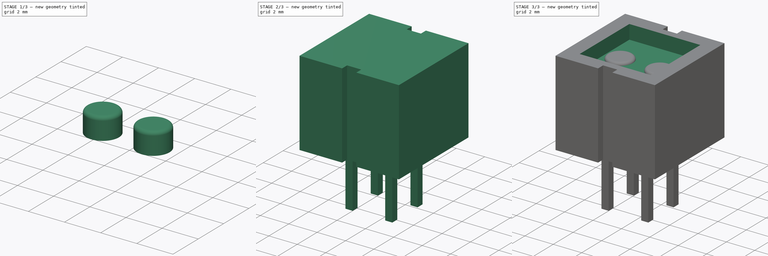
[diagram: build sequence overview — one tinted view per stage of 3, left to right]
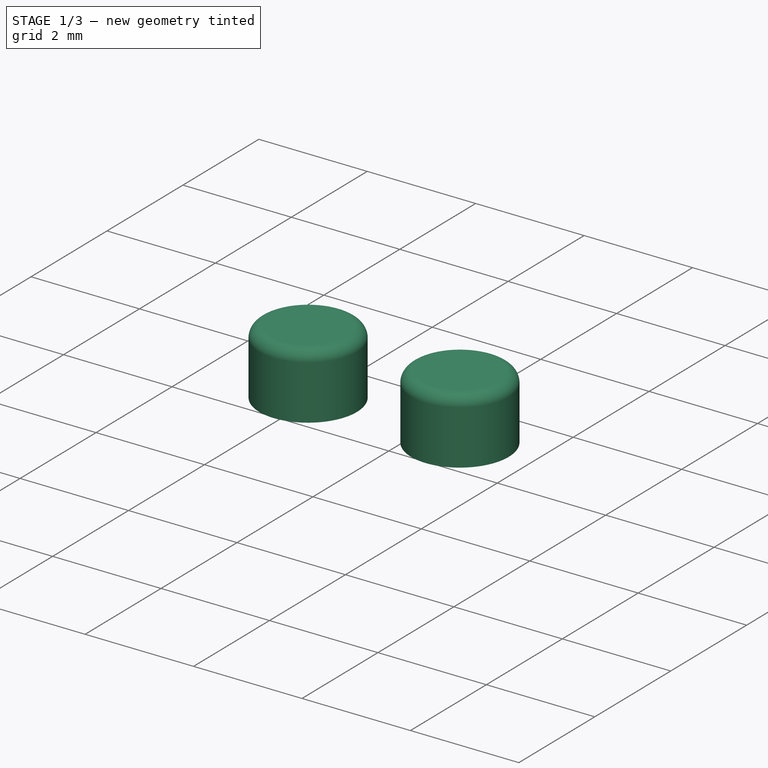
[diagram: stage 1 of 3 — iso view after this stage's code; geometry added in this stage tinted green]
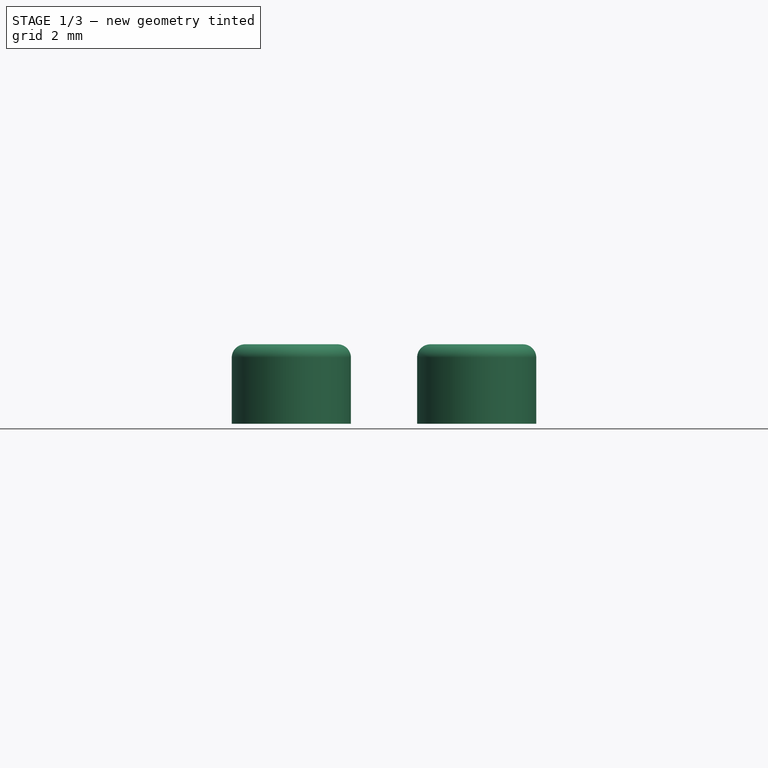
[diagram: stage 1 of 3 — front view after this stage's code; geometry added in this stage tinted green]
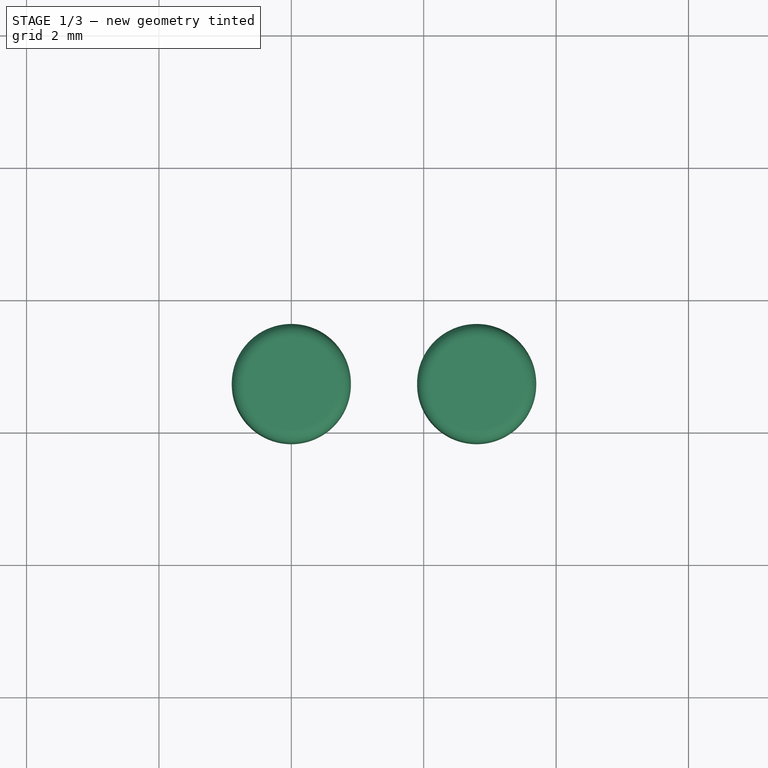
[diagram: stage 1 of 3 — top view after this stage's code; geometry added in this stage tinted green]
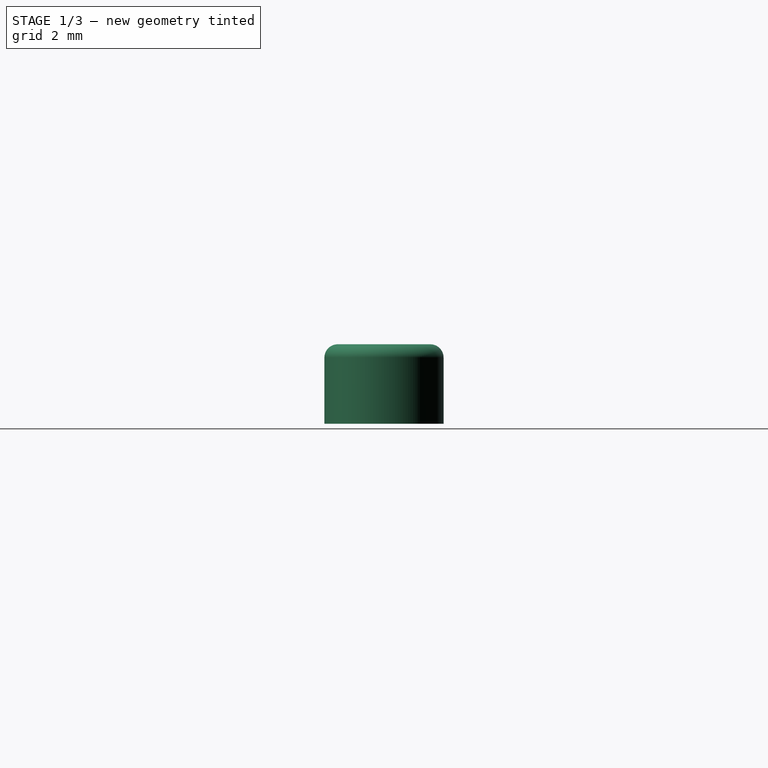
[diagram: stage 1 of 3 — right view after this stage's code; geometry added in this stage tinted green]
FCSTD DOCUMENT  (FreeCAD 0.16R6712 (Git))
Label: Vishay_CNY70
License: All rights reserved
LicenseURL: http://en.wikipedia.org/wiki/All_rights_reserved
objects: Sketcher::SketchObject×4, PartDesign::Pad×3, Part::Feature×3, PartDesign::Pocket×1, PartDesign::Fillet×1, Part::MultiFuse×1, App::DocumentObjectGroup×1
note: 17 computed .brp shape members not serialized (recipe doc carries the construction recipe); baked Part::Feature solids carry a one-line shape summary decoded from their .brp

FEATURE [PartDesign::Pad] Pad003
  Length = 1.2
  Length2 = 100
  Placement = pos=(1.4,-1.27,4) rot=(0,0,1;0rad)
  Sketch = -> Sketch002
  Type = 0
FEATURE [PartDesign::Fillet] Fillet
  Base = -> Pad003 [Edge6,Edge3]
  Placement = pos=(1.4,-1.27,4) rot=(0,0,1;0rad)
  Radius = 0.2
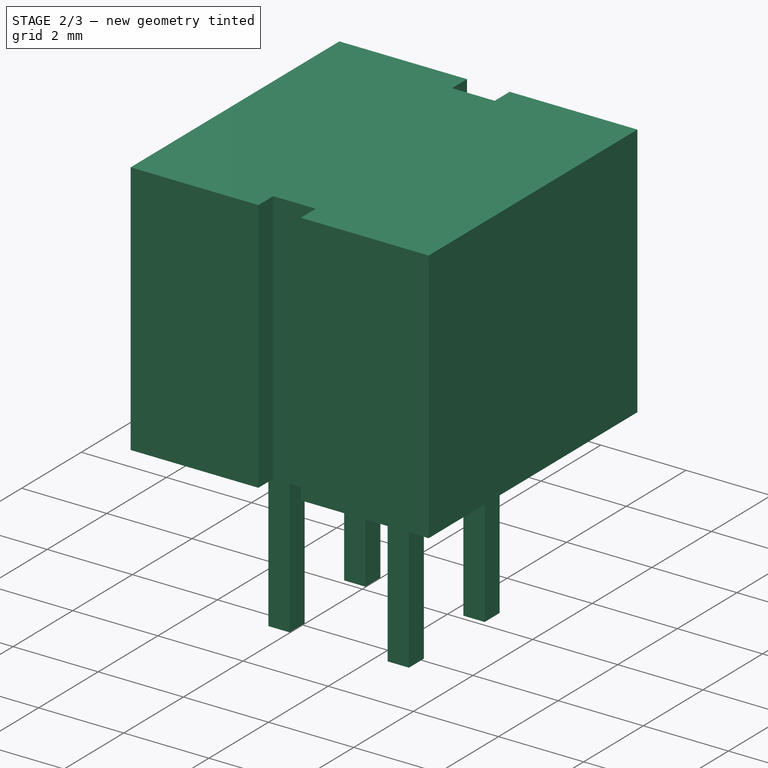
[diagram: stage 2 of 3 — iso view after this stage's code; geometry added in this stage tinted green]
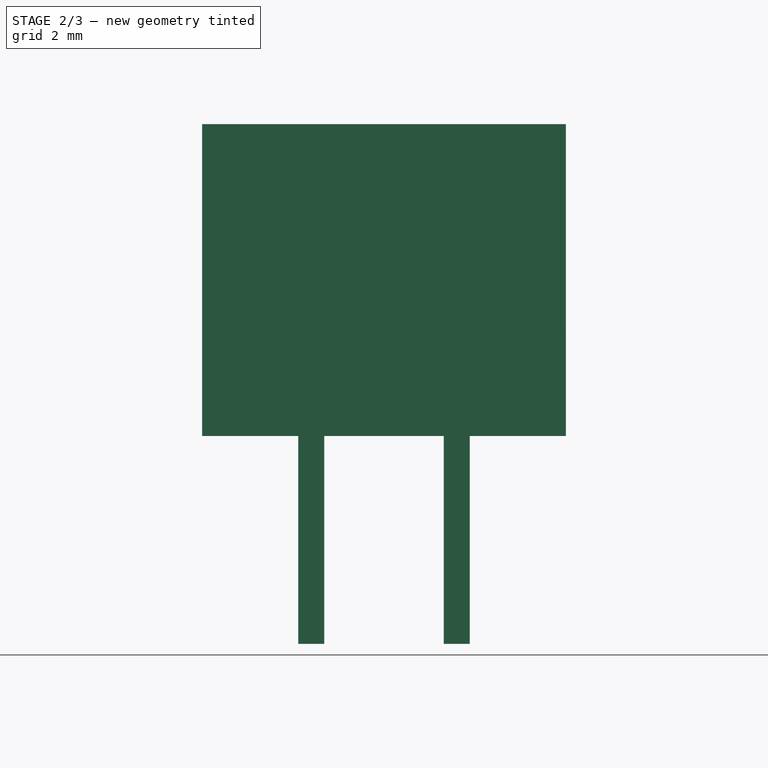
[diagram: stage 2 of 3 — front view after this stage's code; geometry added in this stage tinted green]
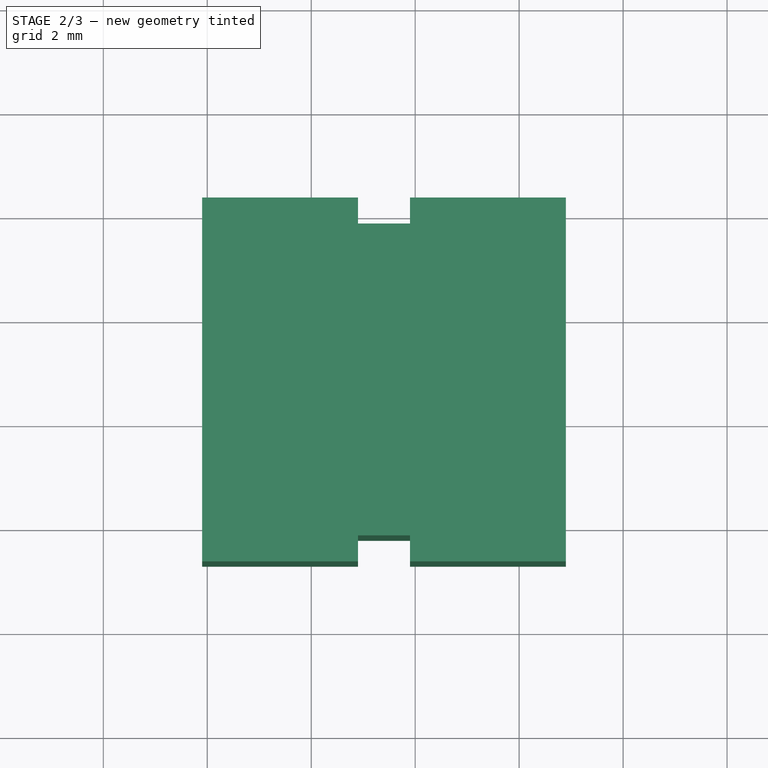
[diagram: stage 2 of 3 — top view after this stage's code; geometry added in this stage tinted green]
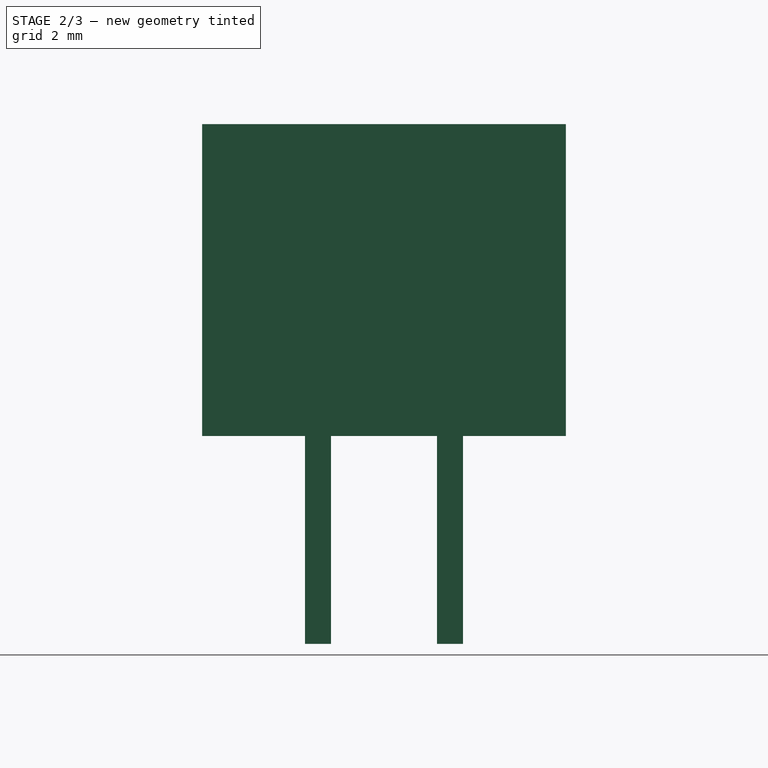
[diagram: stage 2 of 3 — right view after this stage's code; geometry added in this stage tinted green]
FEATURE [Sketcher::SketchObject] Sketch
  Placement = pos=(1.4,-1.27,0) rot=(0,0,1;0rad)
  sketch-geometry (14):
    g0: LineSegment StartX=-3.5 StartY=3.5 StartZ=0 EndX=-3.5 EndY=-3.5 EndZ=0
    g1: LineSegment StartX=-3.5 StartY=-3.5 StartZ=0 EndX=-0.5 EndY=-3.5 EndZ=0
    g2: LineSegment StartX=-0.5 StartY=-3.5 StartZ=0 EndX=-0.5 EndY=-3 EndZ=0
    g3: LineSegment StartX=-0.5 StartY=-3 StartZ=0 EndX=0.5 EndY=-3 EndZ=0
    g4: LineSegment StartX=0.5 StartY=-3 StartZ=0 EndX=0.5 EndY=-3.5 EndZ=0
    g5: LineSegment StartX=0.5 StartY=-3.5 StartZ=0 EndX=3.5 EndY=-3.5 EndZ=0
    g6: LineSegment StartX=3.5 StartY=-3.5 StartZ=0 EndX=3.5 EndY=3.5 EndZ=0
    g7: LineSegment StartX=3.5 StartY=3.5 StartZ=0 EndX=0.5 EndY=3.5 EndZ=0
    g8: LineSegment StartX=0.5 StartY=3.5 StartZ=0 EndX=0.5 EndY=3 EndZ=0
    g9: LineSegment StartX=0.5 StartY=3 StartZ=0 EndX=-0.5 EndY=3 EndZ=0
    g10: LineSegment StartX=-0.5 StartY=3 StartZ=0 EndX=-0.5 EndY=3.5 EndZ=0
    g11: LineSegment StartX=-0.5 StartY=3.5 StartZ=0 EndX=-3.5 EndY=3.5 EndZ=0
    g12: GeomPoint [constr] X=0 Y=3 Z=0
    g13: GeomPoint [constr] X=-3.5 Y=0 Z=0
  constraints (41):
    c: Vertical(g0)
    c: Coincident(g1,g0)
    c: Horizontal(g1)
    c: Coincident(g2,g1)
    c: Horizontal(g3)
    c: Vertical(g4)
    c: Horizontal(g5)
    c: Vertical(g6)
    c: Horizontal(g7)
    c: Vertical(g8)
    c: Horizontal(g9)
    c: Vertical(g10)
    c: Coincident(g11,g0)
    c: Horizontal(g11)
    c: Vertical(g2)
    c: Equal(g3,g9)
    c: Equal(g10,g8)
    c: Equal(g8,g4)
    c: Equal(g4,g2)
    c: Equal(g5,g7)
    c: Equal(g7,g11)
    c: Equal(g11,g1)
    c: Equal(g0,g6)
    c: Coincident(g6,g7)
    c: Coincident(g5,g6)
    c: Coincident(g10,g11)
    c: Coincident(g7,g8)
    c: Coincident(g4,g5)
    c: Coincident(g3,g4)
    c: Coincident(g2,g3)
    c: Coincident(g9,g10)
    c: PointOnObject(g12,g9)
    c: Symmetric(g9,g9,g12)
    c: PointOnObject(g12,g-2)
    c: PointOnObject(g13,g0)
    c: Symmetric(g0,g0,g13)
    c: PointOnObject(g13,g-1)
    c: DistanceY(g6,g6) = 7
    c: DistanceX(g0,g6) = 7
    c: DistanceX(g9,g9) = 1
    c: DistanceY(g4,g4) = 0.5
FEATURE [PartDesign::Pad] Pad
  Length = 6
  Length2 = 100
  Placement = pos=(1.4,-1.27,0) rot=(0,0,1;0rad)
  Sketch = -> Sketch
  Type = 0
FEATURE [Sketcher::SketchObject] Sketch002
  Placement = pos=(1.4,-1.27,4) rot=(0,0,1;0rad)
  sketch-geometry (3):
    g0: Circle CenterX=-1.4 CenterY=0 CenterZ=0 NormalX=0 NormalY=0 NormalZ=1 Radius=0.9
    g1: Circle CenterX=1.4 CenterY=0 CenterZ=0 NormalX=0 NormalY=0 NormalZ=1 Radius=0.9
    g2: LineSegment [constr] StartX=-1.4 StartY=0 StartZ=0 EndX=1.4 EndY=0 EndZ=0
  constraints (8):
    c: PointOnObject(g1,g-1)
    c: Coincident(g2,g0)
    c: Coincident(g2,g1)
    c: Horizontal(g2)
    c: Symmetric(g2,g2,g-1)
    c: DistanceX(g2,g2) = 2.8
    c: Equal(g0,g1)
    c: Radius(g1) = 0.9
FEATURE [Sketcher::SketchObject] Sketch004
  Placement = pos=(1.4,-1.27,0) rot=(0,0,1;0rad)
  sketch-geometry (18):
    g0: LineSegment StartX=-1.65 StartY=1.52 StartZ=0 EndX=-1.15 EndY=1.52 EndZ=0
    g1: LineSegment StartX=-1.15 StartY=1.52 StartZ=0 EndX=-1.15 EndY=1.02 EndZ=0
    g2: LineSegment StartX=-1.15 StartY=1.02 StartZ=0 EndX=-1.65 EndY=1.02 EndZ=0
    g3: LineSegment StartX=-1.65 StartY=1.02 StartZ=0 EndX=-1.65 EndY=1.52 EndZ=0
    g4: LineSegment StartX=-1.65 StartY=-1.02 StartZ=0 EndX=-1.15 EndY=-1.02 EndZ=0
    g5: LineSegment StartX=-1.15 StartY=-1.02 StartZ=0 EndX=-1.15 EndY=-1.52 EndZ=0
    g6: LineSegment StartX=-1.15 StartY=-1.52 StartZ=0 EndX=-1.65 EndY=-1.52 EndZ=0
    g7: LineSegment StartX=-1.65 StartY=-1.52 StartZ=0 EndX=-1.65 EndY=-1.02 EndZ=0
    g8: LineSegment StartX=1.15 StartY=-1.02 StartZ=0 EndX=1.65 EndY=-1.02 EndZ=0
    g9: LineSegment StartX=1.65 StartY=-1.02 StartZ=0 EndX=1.65 EndY=-1.52 EndZ=0
    g10: LineSegment StartX=1.65 StartY=-1.52 StartZ=0 EndX=1.15 EndY=-1.52 EndZ=0
    g11: LineSegment StartX=1.15 StartY=-1.52 StartZ=0 EndX=1.15 EndY=-1.02 EndZ=0
    g12: LineSegment StartX=1.15 StartY=1.52 StartZ=0 EndX=1.65 EndY=1.52 EndZ=0
    g13: LineSegment StartX=1.65 StartY=1.52 StartZ=0 EndX=1.65 EndY=1.02 EndZ=0
    g14: LineSegment StartX=1.65 StartY=1.02 StartZ=0 EndX=1.15 EndY=1.02 EndZ=0
    g15: LineSegment StartX=1.15 StartY=1.02 StartZ=0 EndX=1.15 EndY=1.52 EndZ=0
    g16: LineSegment [constr] StartX=-1.65 StartY=1.52 StartZ=0 EndX=1.65 EndY=-1.52 EndZ=0
    g17: LineSegment [constr] StartX=1.65 StartY=1.52 StartZ=0 EndX=-1.65 EndY=-1.52 EndZ=0
  constraints (52):
    c: Coincident(g0,g1)
    c: Coincident(g1,g2)
    c: Coincident(g2,g3)
    c: Coincident(g3,g0)
    c: Horizontal(g0)
    c: Horizontal(g2)
    c: Vertical(g1)
    c: Vertical(g3)
    c: Coincident(g4,g5)
    c: Coincident(g5,g6)
    c: Coincident(g6,g7)
    c: Coincident(g7,g4)
    c: Horizontal(g4)
    c: Horizontal(g6)
    c: Vertical(g5)
    c: Vertical(g7)
    c: Coincident(g8,g9)
    c: Coincident(g9,g10)
    c: Coincident(g10,g11)
    c: Coincident(g11,g8)
    c: Horizontal(g8)
    c: Horizontal(g10)
    c: Vertical(g9)
    c: Vertical(g11)
    c: Coincident(g12,g13)
    c: Coincident(g13,g14)
    c: Coincident(g14,g15)
    c: Coincident(g15,g12)
    c: Horizontal(g12)
    c: Horizontal(g14)
    c: Vertical(g13)
    c: Vertical(g15)
    c: Equal(g13,g12)
    c: Equal(g12,g0)
    c: Equal(g0,g3)
    c: Equal(g3,g7)
    c: Equal(g7,g4)
    c: Equal(g4,g11)
    c: Equal(g11,g8)
    c: DistanceY(g13,g13) = 0.5
    c: DistanceX(g0,g12) = 2.8
    c: DistanceX(g4,g0) = 0
    c: DistanceX(g12,g8) = 0
    c: DistanceY(g4,g0) = 2.54
    c: DistanceY(g0,g12) = 0
    c: DistanceY(g8,g4) = 0
    c: Coincident(g16,g0)
    c: Coincident(g16,g9)
    c: Coincident(g17,g12)
    c: Coincident(g17,g6)
    c: PointOnObject(g-1,g17)
    c: PointOnObject(g-1,g16)
FEATURE [PartDesign::Pad] Pad002
  Length = 4
  Length2 = 100
  Placement = pos=(1.4,-1.27,0) rot=(0,0,1;0rad)
  Reversed = true
  Sketch = -> Sketch004
  Type = 0
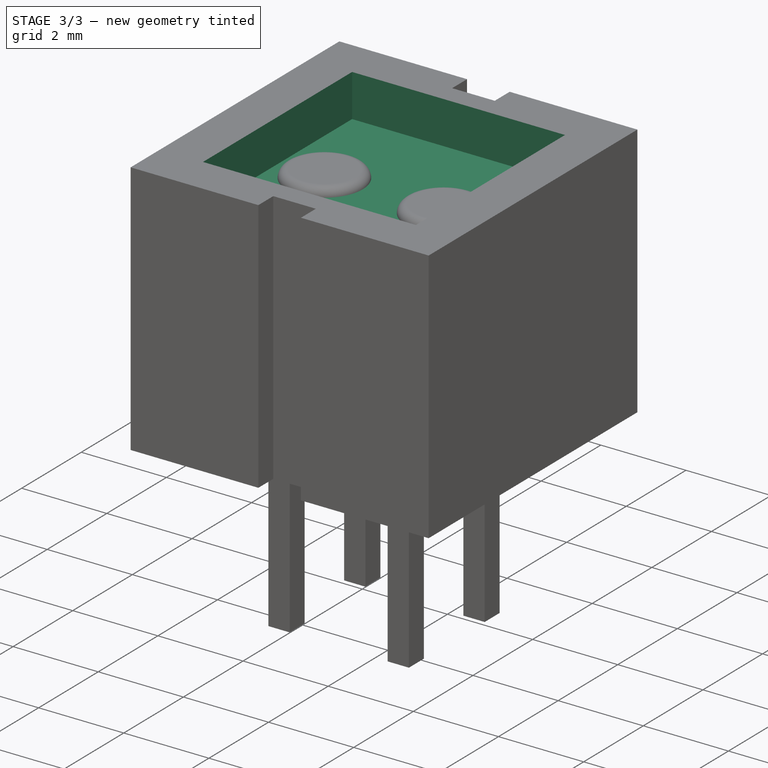
[diagram: stage 3 of 3 — iso view after this stage's code; geometry added in this stage tinted green]
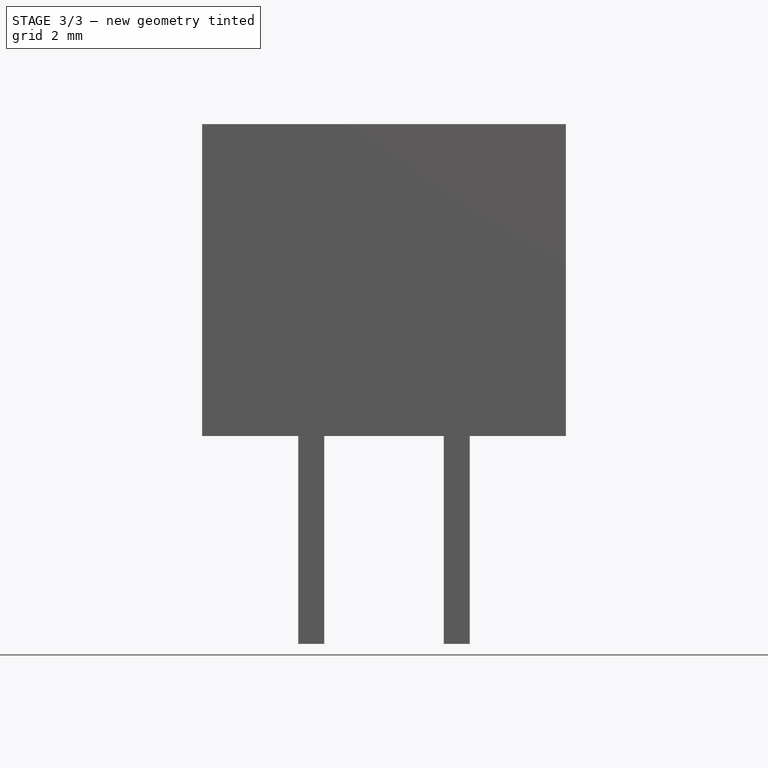
[diagram: stage 3 of 3 — front view after this stage's code; geometry added in this stage tinted green]
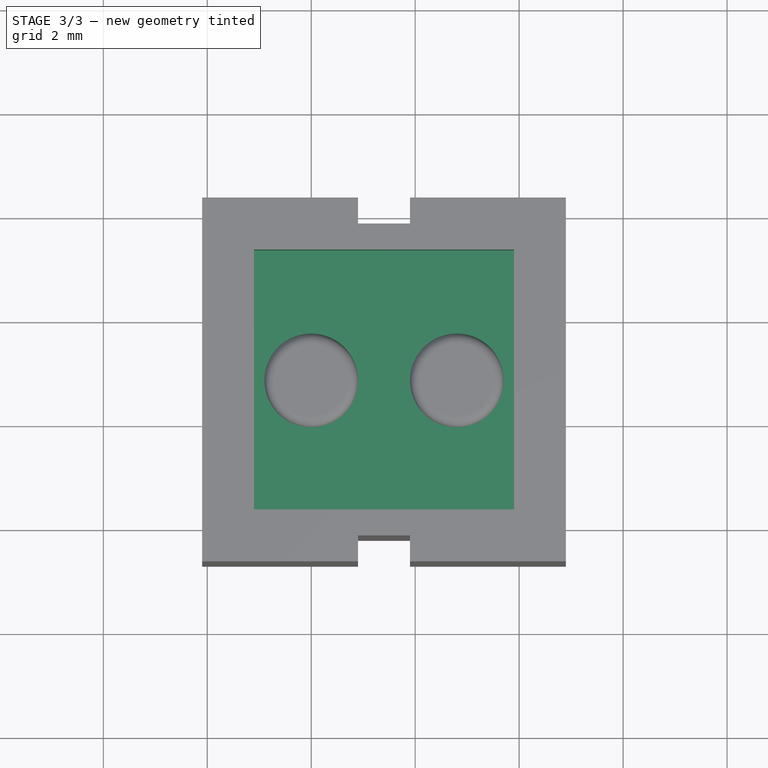
[diagram: stage 3 of 3 — top view after this stage's code; geometry added in this stage tinted green]
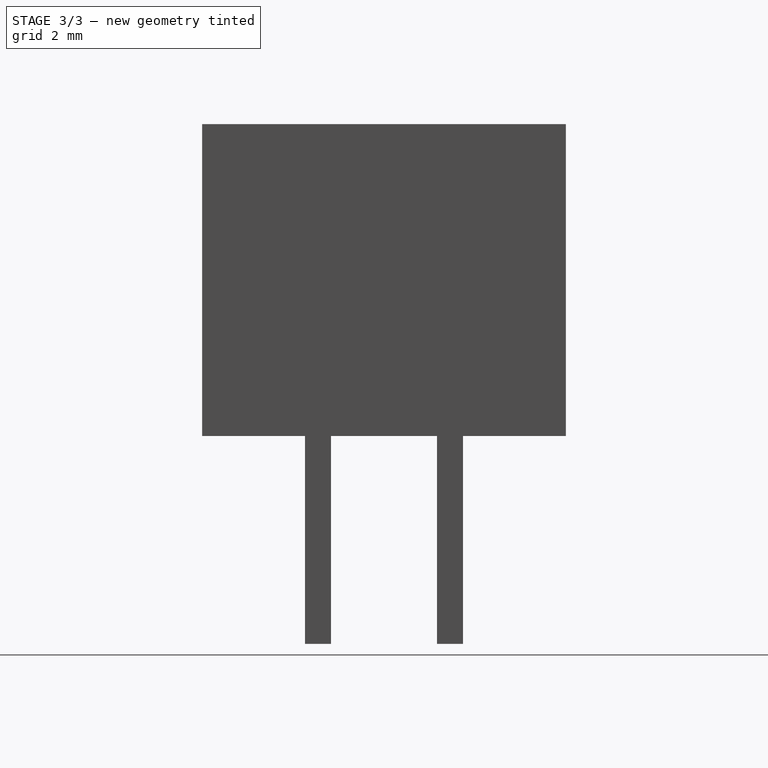
[diagram: stage 3 of 3 — right view after this stage's code; geometry added in this stage tinted green]
FEATURE [Sketcher::SketchObject] Sketch001
  Placement = pos=(1.4,-1.27,6) rot=(0,0,1;0rad)
  Support = -> Pad [Face14]
  sketch-geometry (6):
    g0: LineSegment StartX=-2.5 StartY=2.5 StartZ=0 EndX=2.5 EndY=2.5 EndZ=0
    g1: LineSegment StartX=2.5 StartY=2.5 StartZ=0 EndX=2.5 EndY=-2.5 EndZ=0
    g2: LineSegment StartX=2.5 StartY=-2.5 StartZ=0 EndX=-2.5 EndY=-2.5 EndZ=0
    g3: LineSegment StartX=-2.5 StartY=-2.5 StartZ=0 EndX=-2.5 EndY=2.5 EndZ=0
    g4: LineSegment [constr] StartX=-2.5 StartY=0 StartZ=0 EndX=2.5 EndY=0 EndZ=0
    g5: LineSegment [constr] StartX=0 StartY=-2.5 StartZ=0 EndX=0 EndY=2.5 EndZ=0
  constraints (20):
    c: Coincident(g0,g1)
    c: Coincident(g1,g2)
    c: Coincident(g2,g3)
    c: Coincident(g3,g0)
    c: Horizontal(g0)
    c: Horizontal(g2)
    c: Vertical(g1)
    c: Vertical(g3)
    c: PointOnObject(g4,g1)
    c: Horizontal(g4)
    c: PointOnObject(g5,g2)
    c: PointOnObject(g5,g0)
    c: Vertical(g5)
    c: PointOnObject(g4,g3)
    c: Symmetric(g3,g3,g4)
    c: Symmetric(g0,g0,g5)
    c: PointOnObject(g-1,g5)
    c: PointOnObject(g-1,g4)
    c: DistanceY(g1,g1) = 5
    c: DistanceX(g0,g0) = 5
FEATURE [PartDesign::Pocket] Pocket
  Length = 1
  Placement = pos=(1.4,-1.27,0) rot=(0,0,1;0rad)
  Sketch = -> Sketch001
  Type = 0
FEATURE [Part::MultiFuse] Pocket_mp_cp  label="Vishay_CNY70"
  Shapes = -> [Pocket,Pad002,Fillet]
FEATURE [Part::Feature] FusionAxisZ1  label="Z"
  shape: bbox 0.8 x 0.8 x 14 mm, 8 faces (baked)
FEATURE [Part::Feature] FusionAxisY1  label="Y"
  Placement = pos=(0,0,0.05) rot=(-1,0,0;1.5708rad)
  shape: bbox 0.8 x 14 x 0.8 mm, 8 faces (baked)
FEATURE [Part::Feature] FusionAxisX1  label="X"
  Placement = pos=(0,-0.05,0) rot=(0,1,0;1.5708rad)
  shape: bbox 14 x 0.8 x 0.8 mm, 8 faces (baked)
FEATURE [App::DocumentObjectGroup] axis
  Group = -> [FusionAxisZ1,FusionAxisY1,FusionAxisX1]
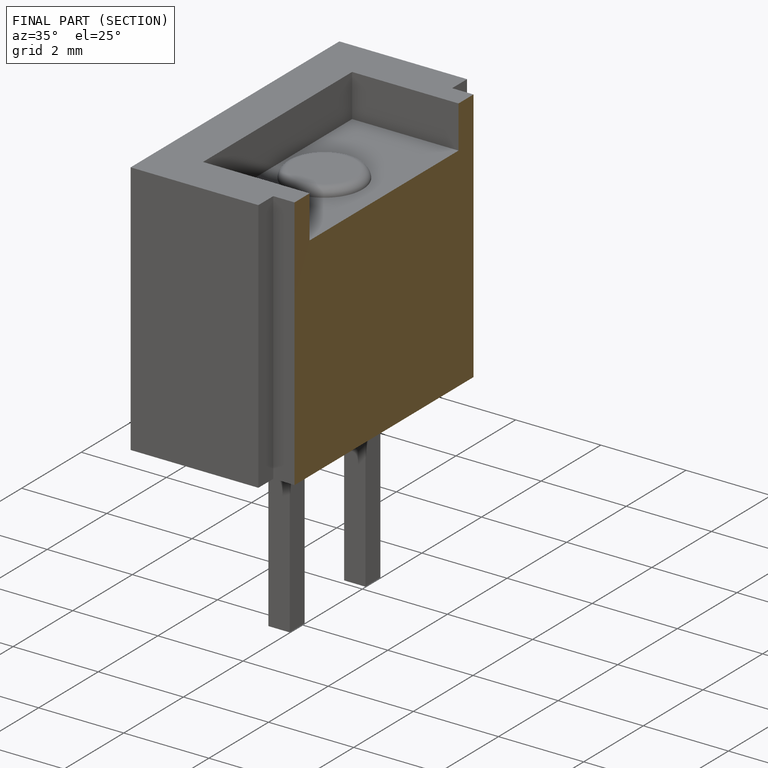
[diagram: finished part — half-section view (interior)]
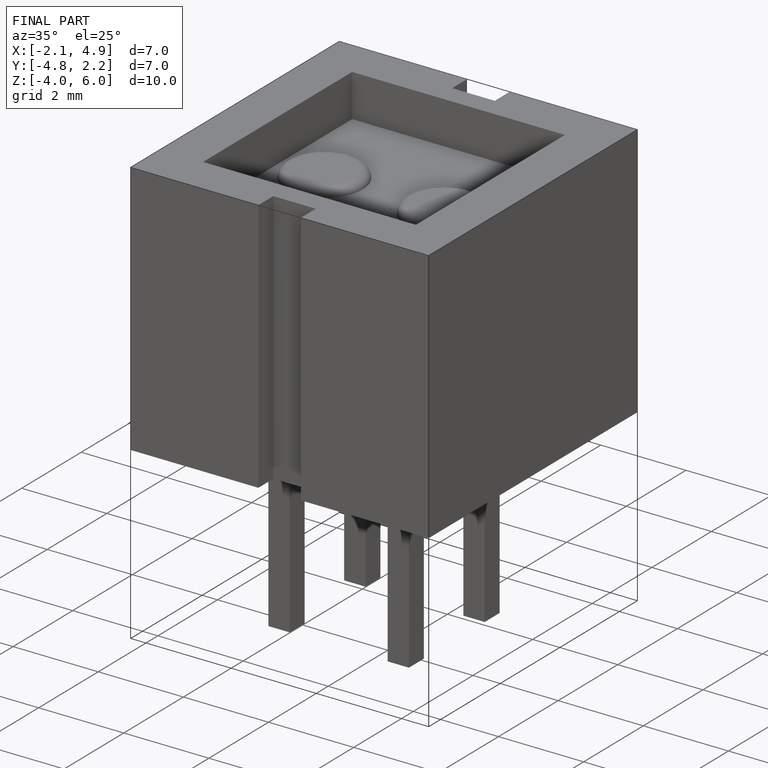
[diagram: finished part — iso view with bounding-box wireframe]
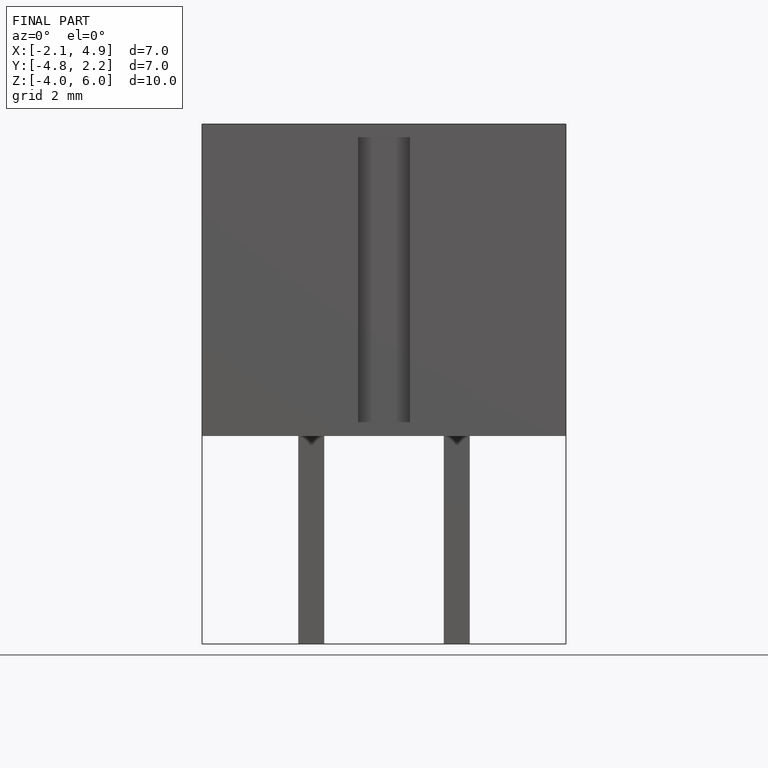
[diagram: finished part — front view with bounding-box wireframe]
